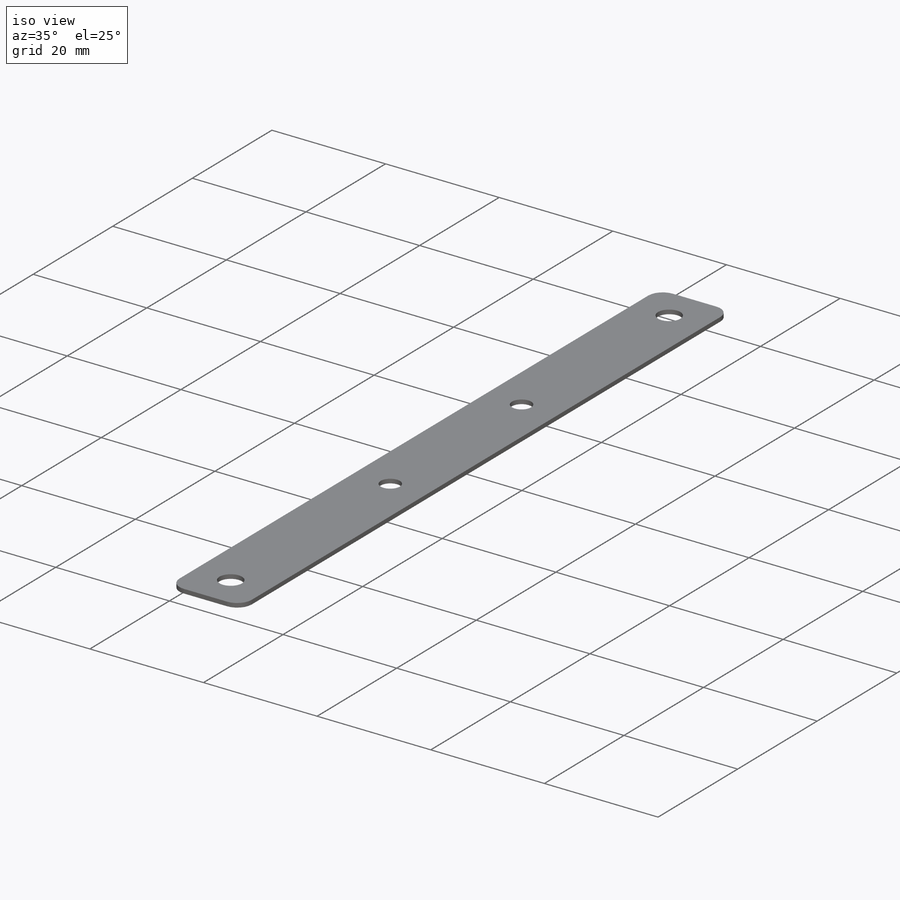
[diagram: iso view]
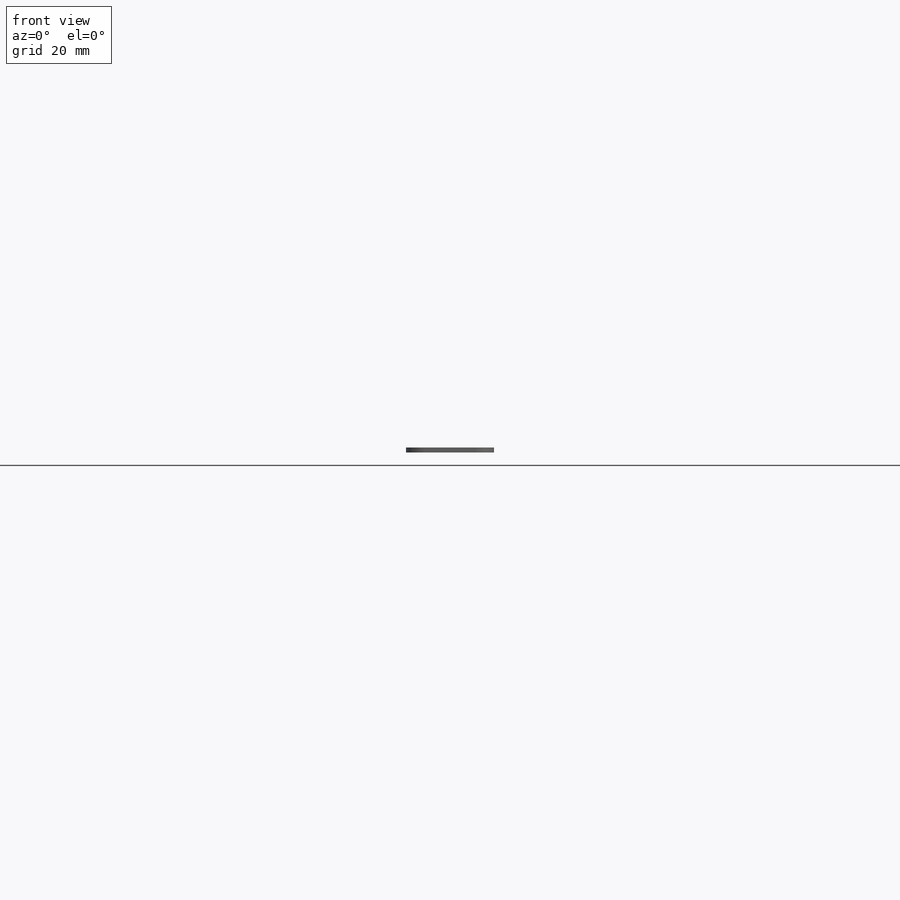
[diagram: front view]
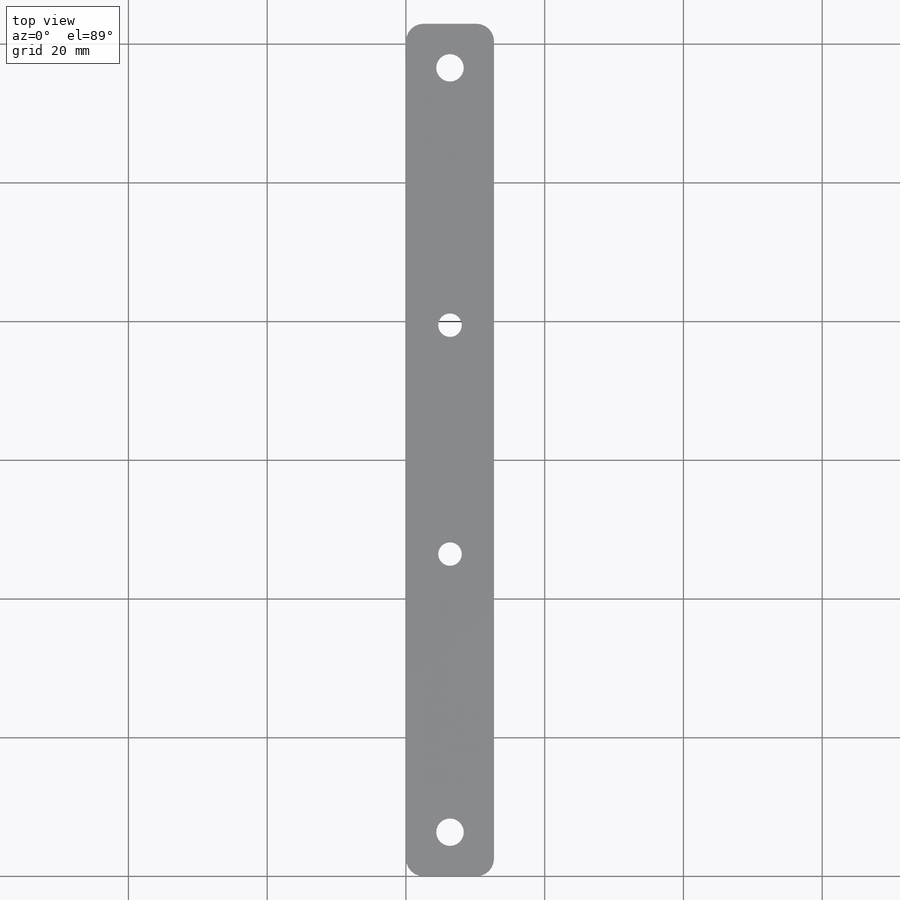
[diagram: top view]
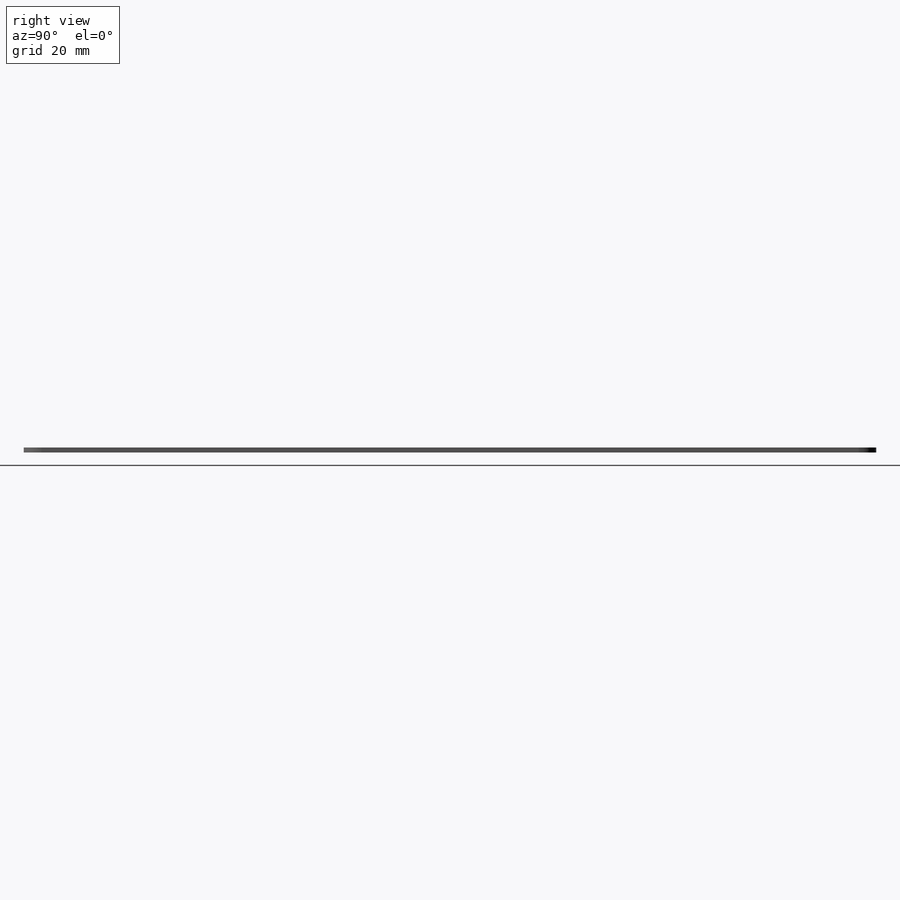
[diagram: right view]
SOLIDWORKS PART (.sldprt)
format: sldprt  version: not decoded by parser v0  size: 239,104 bytes
history: native  units: mm
features: sketch x13, sheet_metal_op x4, hole x2, material x1 + 3 further entries (+12 scaffold rows collapsed; 3 parser-record rows omitted)
feature tree (38):
  scaffold x12  (default folders/planes/origin — collapsed)
  material  "Material <not specified>"
  sketch  "Sketch1"  dims[c1.D1=122.9106mm c1.D2=12.7mm c2.D1=0.7366mm c2.D2=0.5 c2.D3=0.0mm c2.D6=500.0mm]
  sheet_metal_op  "Base-Flange2"
  hole  "M3 Clearance Hole1"  Diameter=3.4mm Depth=0.7366mm
  sketch  "Sketch11"  dims[D1=33.0mm D2=43.4594mm]
  sketch  "Sketch10"  dims[hole-wizard template sketch: 60 standard entries collapsed; hole parameters kept: c18.Thru Hole Depth=0.7366mm]
  hole  "5/32 (0.15625) Diameter Hole1"  Diameter=3.96875mm Depth=0.7366mm
  sketch  "Sketch13"  dims[D1=6.35mm D2=6.35mm]
  sketch  "Sketch12"  dims[hole-wizard template sketch: 61 standard entries collapsed; hole parameters kept: c18.D1=2.54mm c18.D0=2.54mm c19.D0=2.54mm c19.D7=5.0mm]
  sketch  "Bend-Lines3"
  sketch  "Bounding-Box3"
  sheet_metal_op  "Sheet-Metal(2)"
  "Flat-Pattern(2)"
  sketch  "Bend-Lines4"
  sketch  "Bounding-Box4"
  parser-record x3  (decoder bookkeeping rows leaked as tree rows — omitted from the tree; the rows remain in map.json)
  sheet_metal_op  "Sheet-Metal(3)"
  "Flat-Pattern(2)"
  sketch  "Bend-Lines4"
  sketch  "Bounding-Box4"
  sheet_metal_op  "Sheet-Metal(4)"
  "Flat-Pattern(2)"
  sketch  "Bend-Lines4"
  sketch  "Bounding-Box4"
decode coverage: 7 of 19 modeling features carry decoded parameters; 3 rows unclassified (native names shown)
note: ~ marks probable driven/reference dimensions
note: suppression state not decoded; provenance and decode notes live in map.json
